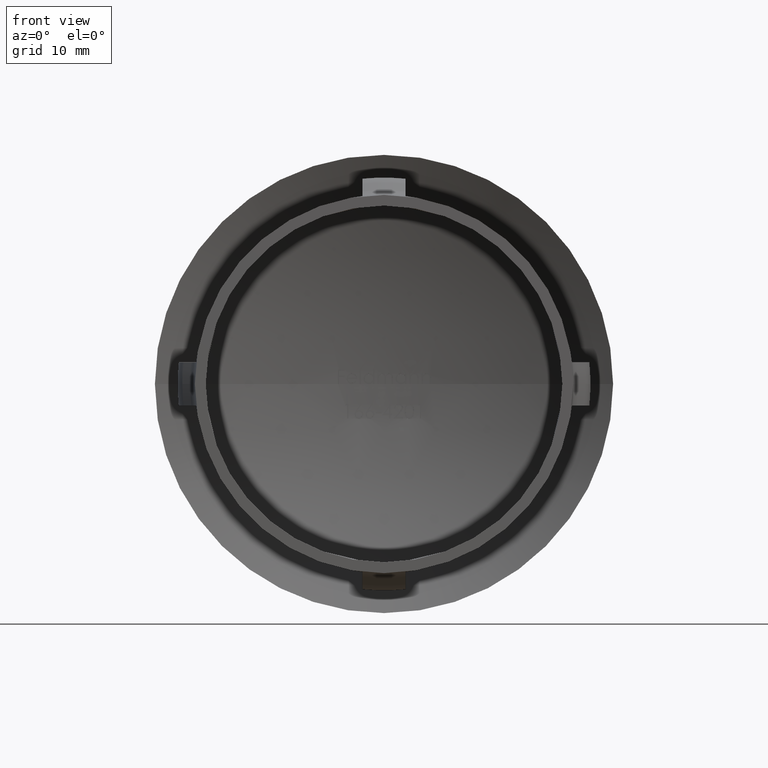
[diagram: clean part render]
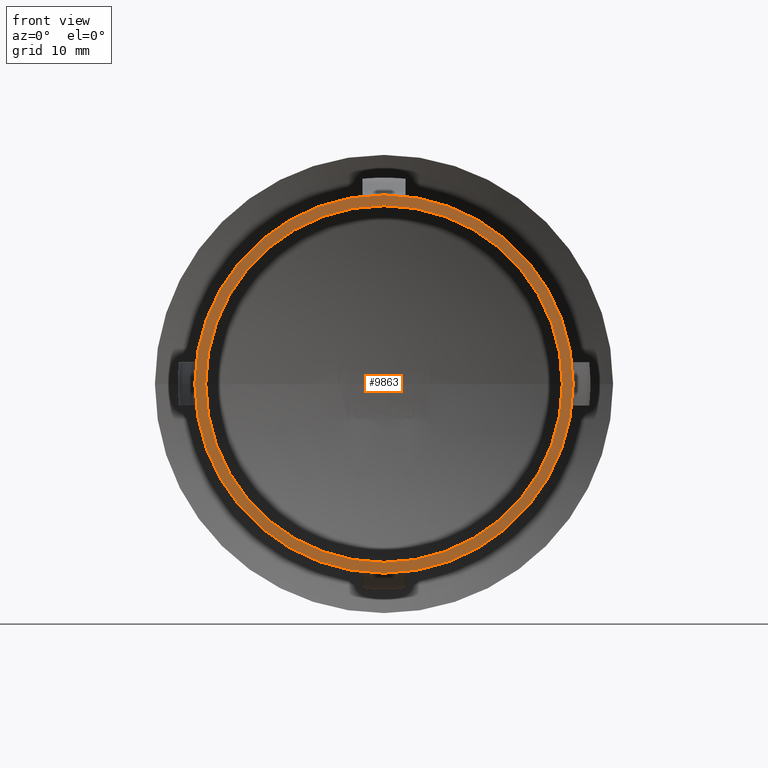
[diagram: same view with one face highlighted and labeled with its STEP entity id]
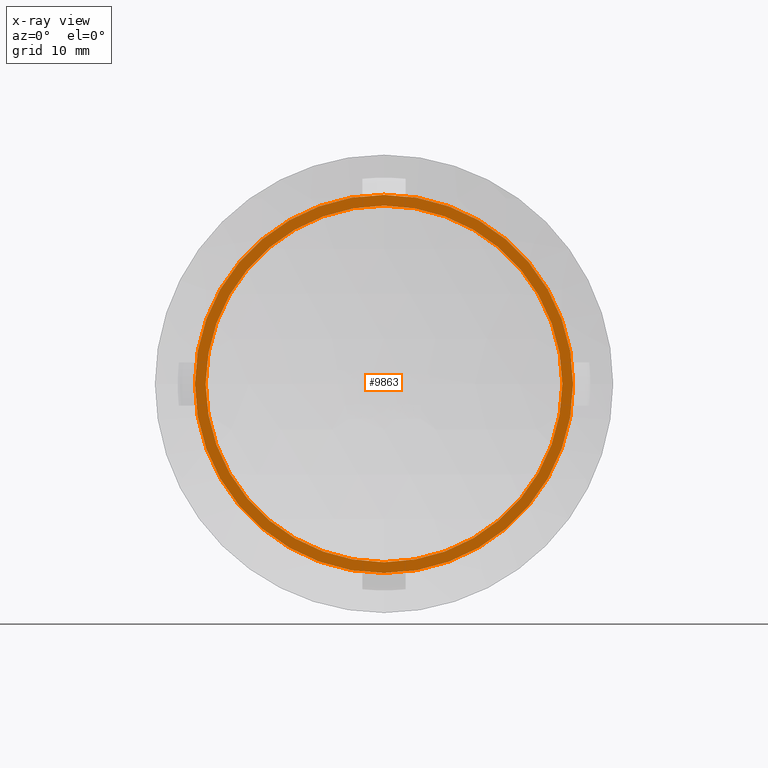
[diagram: x-ray of the same camera — body ghosted, the highlighted face saturated]
A machine part, front view. The second image highlights one B-rep face of the part: STEP entity #9863.
The next image is the same camera in x-ray: the body ghosted, the highlighted face saturated — about 0% of this face is hidden behind the body in this view.
In plain terms, the highlighted planar face has unit normal (-0, -1, 0).
Its self-contained STEP definition (entity closure, byte-faithful):
#46 = EDGE_LOOP ( 'NONE', ( #124, #13554 ) ) ;
#124 = ORIENTED_EDGE ( 'NONE', *, *, #161, .F. ) ;
#161 = EDGE_CURVE ( 'NONE', #671, #9048, #10293, .T. ) ;
#521 = CIRCLE ( 'NONE', #1762, 17.50000000000008500 ) ;
#601 = FACE_BOUND ( 'NONE', #46, .T. ) ;
#671 = VERTEX_POINT ( 'NONE', #3336 ) ;
#1249 = CARTESIAN_POINT ( 'NONE',  ( -8.395051779899014400E-014, 5.204170427930421300E-014, 0.0000000000000000000 ) ) ;
#1385 = DIRECTION ( 'NONE',  ( -2.904862207577519400E-015, -1.000000000000000000, -0.0000000000000000000 ) ) ;
#1530 = DIRECTION ( 'NONE',  ( 1.000000000000000000, -2.904862207577519400E-015, 0.0000000000000000000 ) ) ;
#1762 = AXIS2_PLACEMENT_3D ( 'NONE', #4788, #6978, #1530 ) ;
#2149 = CARTESIAN_POINT ( 'NONE',  ( 17.50000000000000000, 1.206615646697376900E-015, 0.0000000000000000000 ) ) ;
#2210 = CARTESIAN_POINT ( 'NONE',  ( -8.395051779899015700E-014, 4.857225732735059900E-014, 0.0000000000000000000 ) ) ;
#2299 = DIRECTION ( 'NONE',  ( 1.000000000000000000, -2.904862207577519400E-015, 0.0000000000000000000 ) ) ;
#2597 = DIRECTION ( 'NONE',  ( -2.904862207577519400E-015, -1.000000000000000000, -0.0000000000000000000 ) ) ;
#3073 = EDGE_LOOP ( 'NONE', ( #8919, #4984 ) ) ;
#3131 = AXIS2_PLACEMENT_3D ( 'NONE', #1249, #1385, #2299 ) ;
#3336 = CARTESIAN_POINT ( 'NONE',  ( 16.49999999999999600, 6.420309023212971100E-016, 0.0000000000000000000 ) ) ;
#3408 = EDGE_CURVE ( 'NONE', #12980, #4438, #521, .T. ) ;
#3929 = AXIS2_PLACEMENT_3D ( 'NONE', #12094, #2597, #10032 ) ;
#4438 = VERTEX_POINT ( 'NONE', #2149 ) ;
#4788 = CARTESIAN_POINT ( 'NONE',  ( -8.395051779899014400E-014, 5.204170427930421300E-014, 0.0000000000000000000 ) ) ;
#4984 = ORIENTED_EDGE ( 'NONE', *, *, #3408, .T. ) ;
#5059 = CIRCLE ( 'NONE', #3131, 17.50000000000008500 ) ;
#5084 = CIRCLE ( 'NONE', #3929, 16.50000000000008200 ) ;
#6978 = DIRECTION ( 'NONE',  ( -2.904862207577519400E-015, -1.000000000000000000, -0.0000000000000000000 ) ) ;
#7214 = FACE_OUTER_BOUND ( 'NONE', #3073, .T. ) ;
#7500 = AXIS2_PLACEMENT_3D ( 'NONE', #2210, #9688, #12763 ) ;
#8420 = EDGE_CURVE ( 'NONE', #9048, #671, #5084, .T. ) ;
#8770 = CARTESIAN_POINT ( 'NONE',  ( -17.50000000000016300, 1.028767929119110500E-013, 2.143131898507882400E-015 ) ) ;
#8834 = DIRECTION ( 'NONE',  ( -2.904862207577519400E-015, -1.000000000000000000, 0.0000000000000000000 ) ) ;
#8919 = ORIENTED_EDGE ( 'NONE', *, *, #9809, .T. ) ;
#8962 = PLANE ( 'NONE',  #10011 ) ;
#9048 = VERTEX_POINT ( 'NONE', #13247 ) ;
#9688 = DIRECTION ( 'NONE',  ( -2.904862207577519400E-015, -1.000000000000000000, -0.0000000000000000000 ) ) ;
#9809 = EDGE_CURVE ( 'NONE', #4438, #12980, #5059, .T. ) ;
#9863 = ADVANCED_FACE ( 'NONE', ( #7214, #601 ), #8962, .T. ) ;
#9865 = CARTESIAN_POINT ( 'NONE',  ( 16.49999999999999600, 1.421814933810087200E-015, 0.0000000000000000000 ) ) ;
#10011 = AXIS2_PLACEMENT_3D ( 'NONE', #9865, #8834, #11110 ) ;
#10032 = DIRECTION ( 'NONE',  ( 1.000000000000000000, -2.904862207577519000E-015, 0.0000000000000000000 ) ) ;
#10293 = CIRCLE ( 'NONE', #7500, 16.50000000000008200 ) ;
#11110 = DIRECTION ( 'NONE',  ( 1.000000000000000000, -2.904862207577519400E-015, 0.0000000000000000000 ) ) ;
#12094 = CARTESIAN_POINT ( 'NONE',  ( -8.395051779899015700E-014, 4.857225732735059900E-014, 0.0000000000000000000 ) ) ;
#12763 = DIRECTION ( 'NONE',  ( 1.000000000000000000, -2.904862207577519000E-015, 0.0000000000000000000 ) ) ;
#12980 = VERTEX_POINT ( 'NONE', #8770 ) ;
#13247 = CARTESIAN_POINT ( 'NONE',  ( -16.50000000000016300, 9.650248375237989400E-014, 2.020667218593147300E-015 ) ) ;
#13554 = ORIENTED_EDGE ( 'NONE', *, *, #8420, .F. ) ;